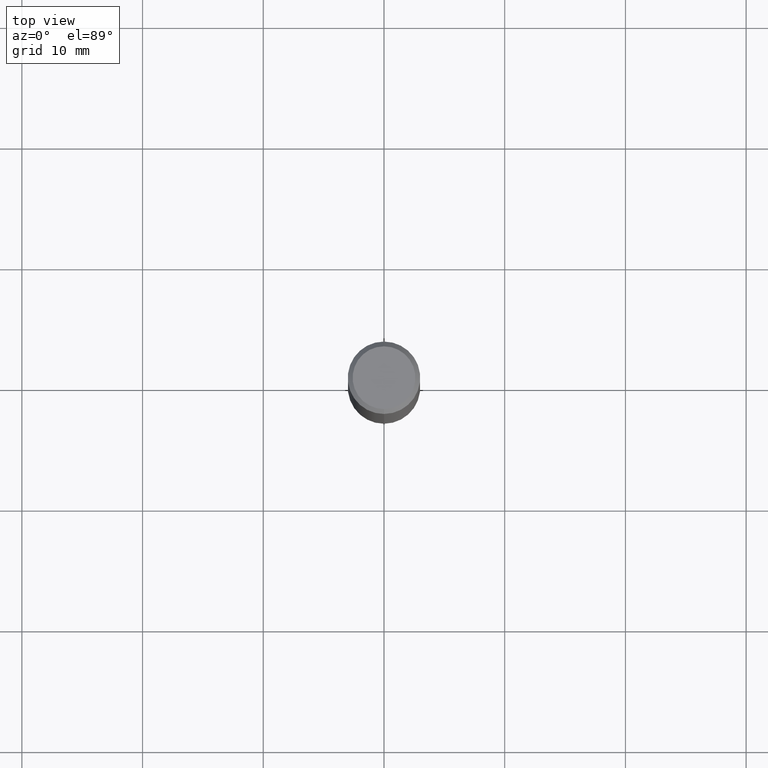
[diagram: clean part render]
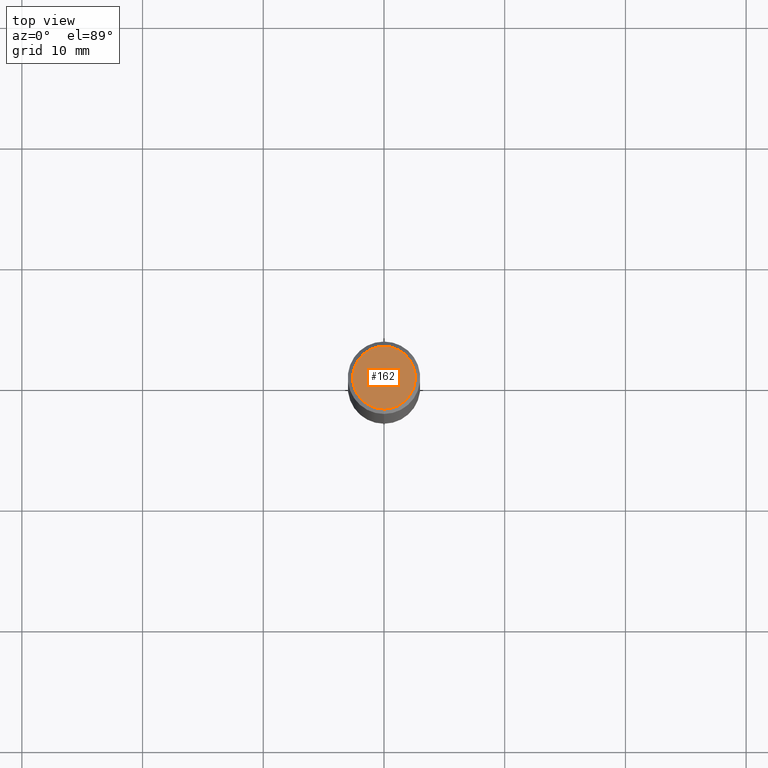
[diagram: same view with one face highlighted and labeled with its STEP entity id]
A machine part, top view. The second image highlights one B-rep face of the part: STEP entity #162.
In plain terms, the highlighted planar face has unit normal (-0, 0, 1).
Its self-contained STEP definition (entity closure, byte-faithful):
#102=EDGE_CURVE('',#122,#110,#225,.T.);
#110=VERTEX_POINT('',#234);
#118=EDGE_CURVE('',#110,#122,#242,.T.);
#122=VERTEX_POINT('',#247);
#162=ADVANCED_FACE('',(#292),#293,.T.);
#225=CIRCLE('',#360,2.6);
#234=CARTESIAN_POINT('',(0.0,2.6,0.0));
#242=CIRCLE('',#383,2.6);
#247=CARTESIAN_POINT('',(3.18397651993818E-016,-2.6,0.0));
#292=FACE_OUTER_BOUND('',#442,.T.);
#293=PLANE('',#443);
#360=AXIS2_PLACEMENT_3D('',#500,#501,#502);
#383=AXIS2_PLACEMENT_3D('',#521,#522,#523);
#442=EDGE_LOOP('',(#579,#580));
#443=AXIS2_PLACEMENT_3D('',#581,#582,#583);
#500=CARTESIAN_POINT('',(0.0,0.0,0.0));
#501=DIRECTION('',(0.0,0.0,-1.0));
#502=DIRECTION('',(0.0,1.0,0.0));
#521=CARTESIAN_POINT('',(0.0,0.0,0.0));
#522=DIRECTION('',(0.0,0.0,-1.0));
#523=DIRECTION('',(0.0,1.0,0.0));
#579=ORIENTED_EDGE('',*,*,#118,.F.);
#580=ORIENTED_EDGE('',*,*,#102,.F.);
#581=CARTESIAN_POINT('',(0.0,1.3,0.0));
#582=DIRECTION('',(-0.0,0.0,1.0));
#583=DIRECTION('',(0.0,-1.0,0.0));